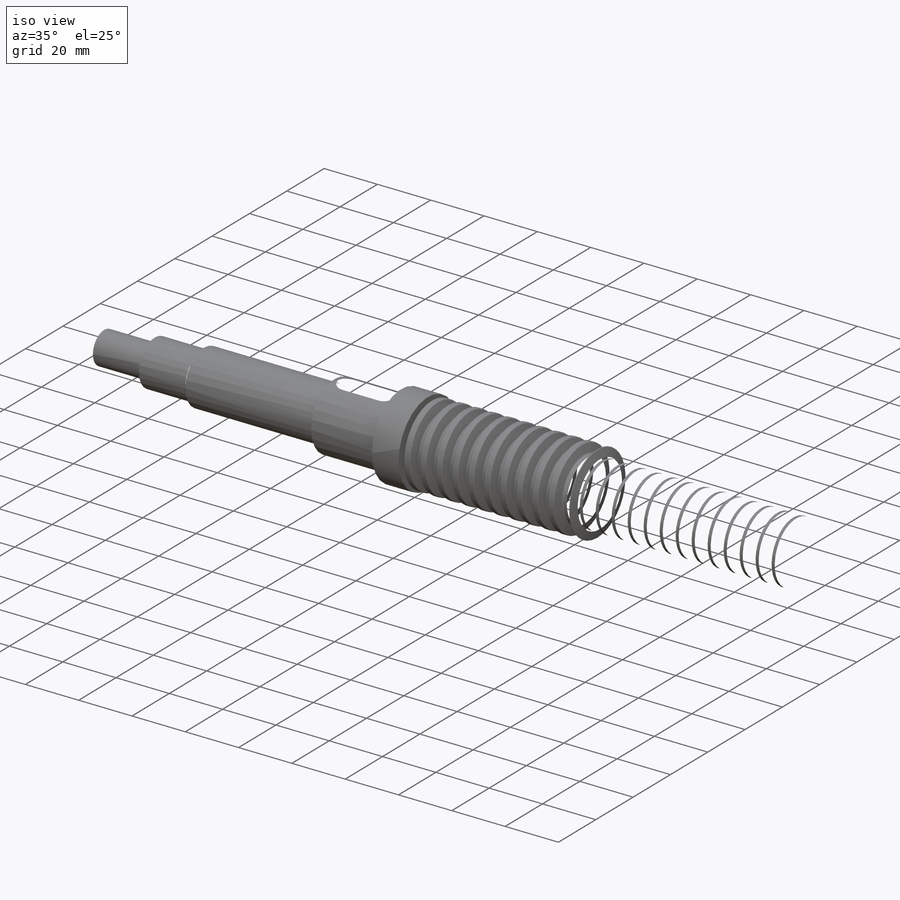
[diagram: iso view]
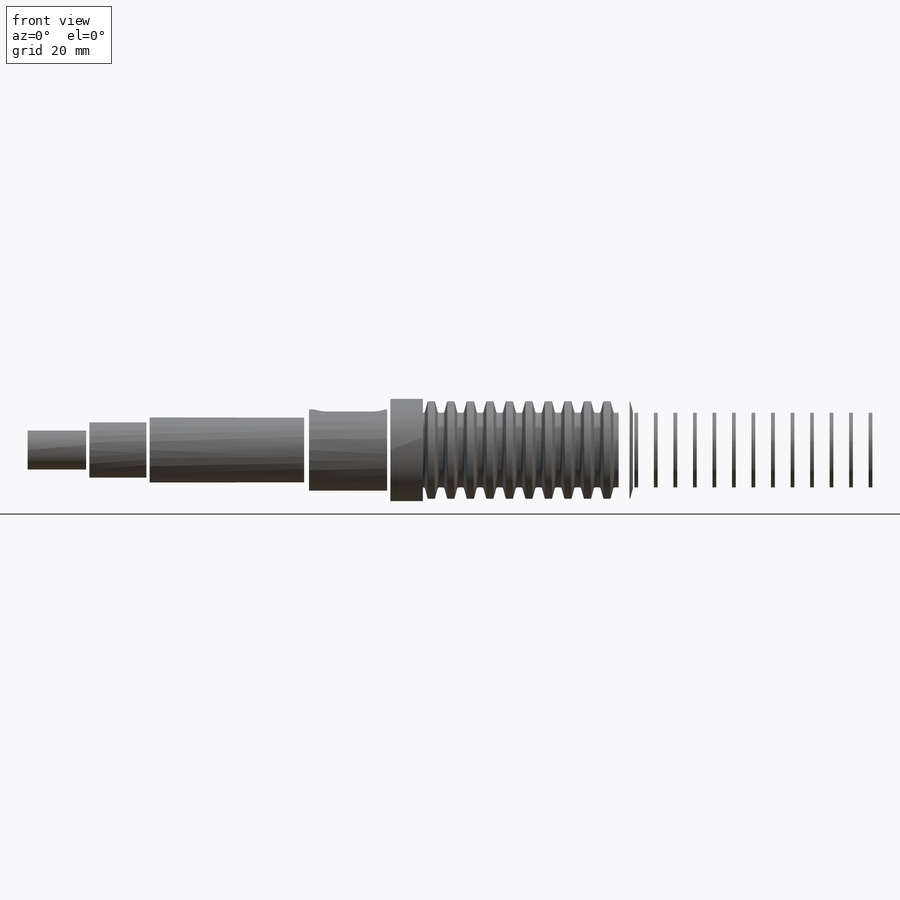
[diagram: front view]
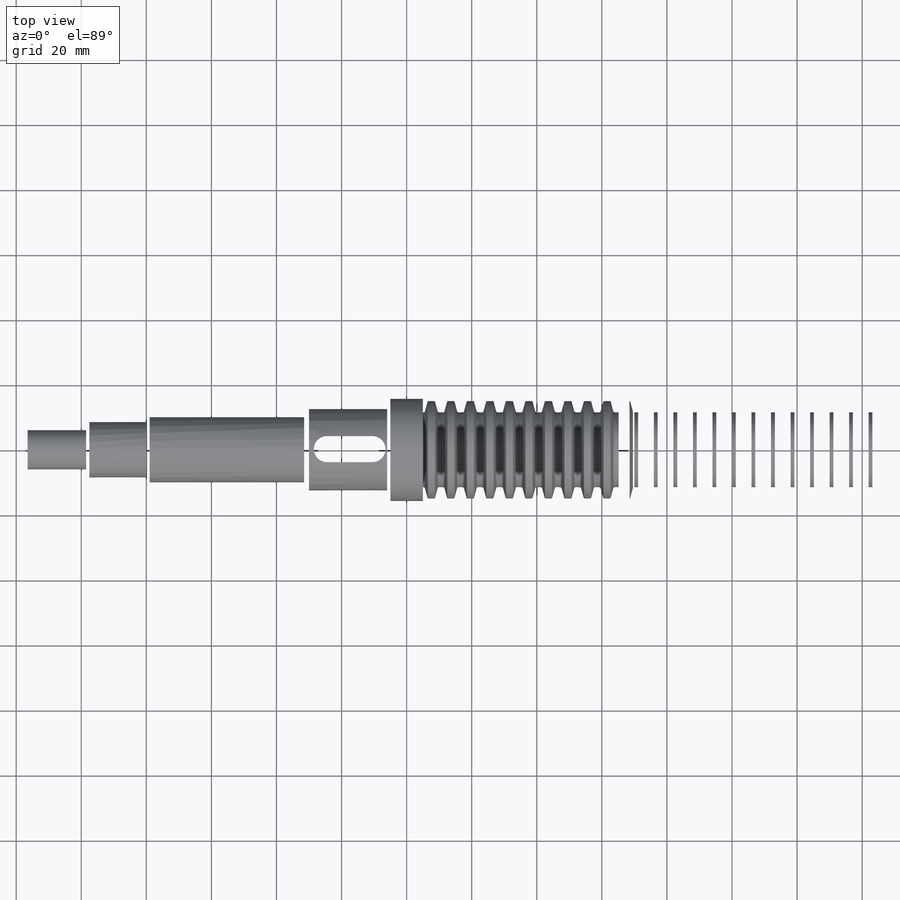
[diagram: top view]
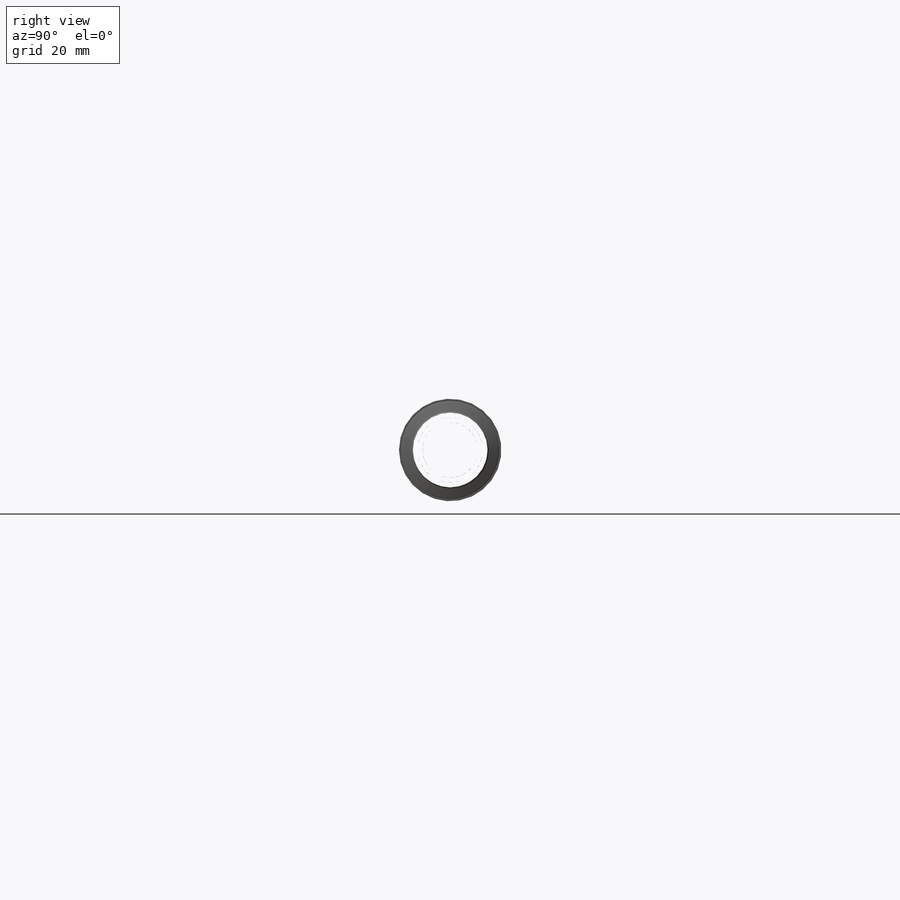
[diagram: right view]
SOLIDWORKS PART (.sldprt)
format: sldprt  version: not decoded by parser v0  size: 1,163,264 bytes
history: native  units: mm
features: sketch x7, chamfer x3, material x2, revolve x2, plane x1, thread x1, helix x1, sweep x1, pattern_linear x1, fillet x1, cut_revolve x1, cut_extrude x1 + 5 further entries (+22 scaffold rows collapsed; 1 parser-record rows omitted)
feature tree (50):
  scaffold x22  (default folders/planes/origin — collapsed)
  material  "Сталь 45 ГОСТ 535-88"
  material  "CimlogicGeneral"
  plane  "Спереди"
  "Сверху"
  "Слева"
  "Начало координат"
  sketch  "Эскиз1"  dims[c1.D1=12.0mm c1.D2=23.0mm c1.D3=10.0mm c1.D4=31.5mm c1.D5=25.0mm c1.D6=20.0001mm c1.D7=143.0mm c1.D8=19.0mm c1.D9=25.5mm c1.D10=49.0mm c1.D11=40.0mm c1.D12=286.5mm c1.D13=12.0mm c2.D11=40.0mm c2.D14=18.0mm c2.D15=17.0mm]
  revolve  "Повернуть1"  [1 undecoded]
  thread  "Условное изображение резьбы1"  Diameter=20mm  [1 undecoded]
  sketch  "Эскиз2"  dims[c1.D2=0.25mm c1.D3=0.5mm c1.D1=~3.063891mm c2.D1=30.0deg c2.D4=3.5mm c2.D5=30.0mm c2.D6=1.5mm c2.D7=3.0mm c2.D8=12.58mm]
  sketch  "Эскиз3"
  helix  "Спираль1"  Pitch=143mm
  sweep  "Tr30x6-6e"
  parser-record x1  (decoder bookkeeping rows leaked as tree rows — omitted from the tree; the rows remain in map.json)
  revolve  "Повернуть2"  [1 undecoded]
  sketch  "Эскиз2<2>"  dims[D1=360.0deg]
  pattern_linear  "Линейный массив1"  Count1=24 Count2=1 Spacing1=6mm Spacing2=10mm
  sketch  "Эскиз4"  dims[D1=30.0mm]
  fillet  "Скругление3"  Radius=1mm
  chamfer  "Фаска1"  Distance=0.5mm Angle=45deg
  "Плоскость1"
  chamfer  "Скругление6"  Distance=0.5mm
  sketch  "Эскиз6"  dims[D1=0.25mm D2=0.25mm D3=37.0mm D4=1.2mm D5=11.3mm D6=14.0mm D7=1.3mm]
  cut_revolve  "Канавка для DIN 6799 - 10, Замковое кольцо для вала1"  [1 undecoded]
  "CimlogicGeneral21283"
  sketch  "Эскиз7"  dims[c1.D1=~2.670117mm c1.D4=4.0mm c2.D1=22.0mm c2.D2=8.0mm c2.D3=12.5mm c2.D4=2.0mm]
  cut_extrude  "Шпоночный паз под ЗК"  [1 undecoded]
  chamfer  "Скругление5"  Distance=0.2mm
decode coverage: 13 of 19 modeling features carry decoded parameters; 5 rows unclassified (native names shown)
note: ~ marks probable driven/reference dimensions
note: 5 parameter values undecoded
summary: no parameter record found for 4 features
note: suppression state not decoded; provenance and decode notes live in map.json
